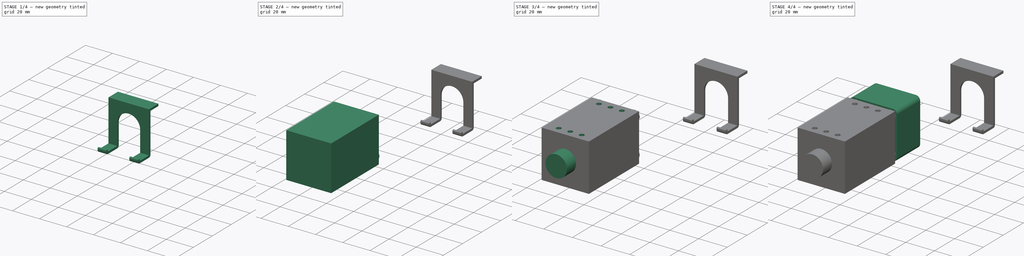
[diagram: build sequence overview — one tinted view per stage of 4, left to right]
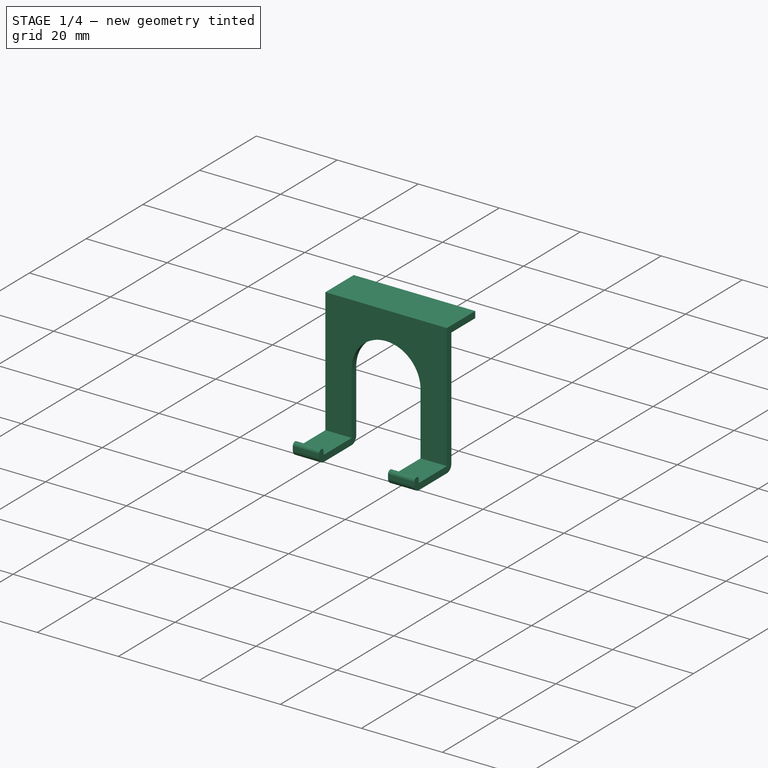
[diagram: stage 1 of 4 — iso view after this stage's code; geometry added in this stage tinted green]
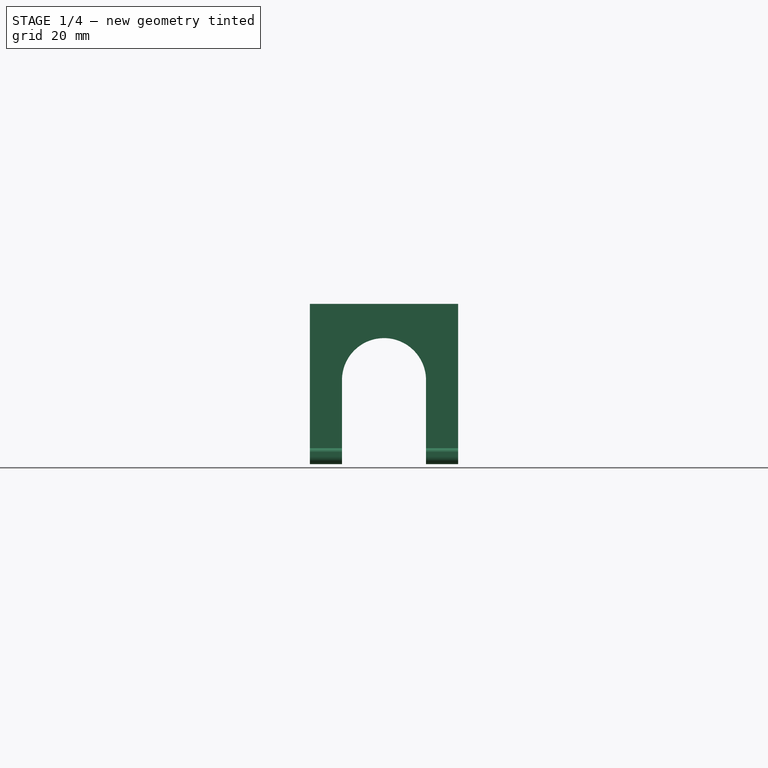
[diagram: stage 1 of 4 — front view after this stage's code; geometry added in this stage tinted green]
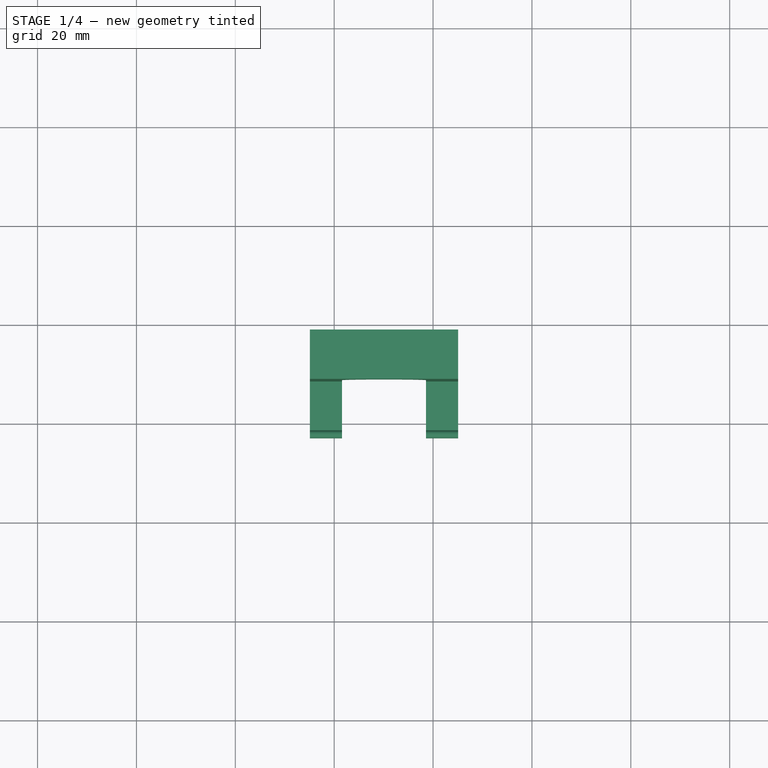
[diagram: stage 1 of 4 — top view after this stage's code; geometry added in this stage tinted green]
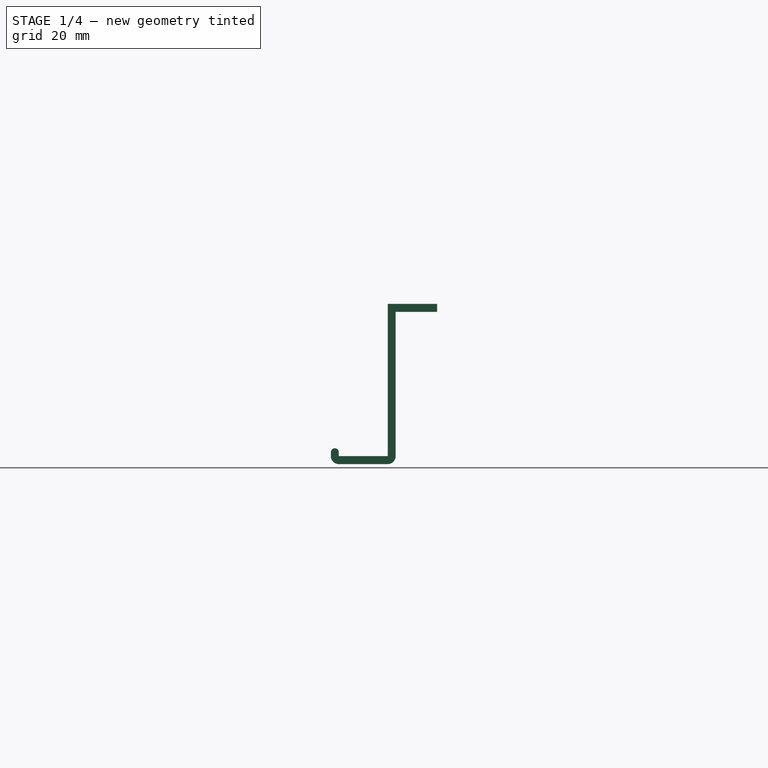
[diagram: stage 1 of 4 — right view after this stage's code; geometry added in this stage tinted green]
FCSTD DOCUMENT  (FreeCAD 0.19R24267 (Git))
Label: tete
License: All rights reserved
LicenseURL: http://en.wikipedia.org/wiki/All_rights_reserved
objects: Sketcher::SketchObject×8, PartDesign::Pad×5, Part::Feature×2, PartDesign::Plane×2, PartDesign::Body×2, App::FeaturePython×2, PartDesign::Point×1, PartDesign::ShapeBinder×1, PartDesign::PolarPattern×1, PartDesign::Hole×1, PartDesign::Fillet×1, App::DocumentObjectGroup×1, PartDesign::Pocket×1
note: 33 computed .brp shape members not serialized (recipe doc carries the construction recipe); baked Part::Feature solids carry a one-line shape summary decoded from their .brp

FEATURE [Part::Feature] Eazy_Mainbody_1_3001001_solid  label="Eazy_Mainbody_1_3002 (Solid)"
  shape: bbox 100.3 x 28.59 x 50 mm, 15862 faces (baked)
FEATURE [PartDesign::Point] DatumPoint
  AttacherType = Attacher::AttachEnginePoint
  MapMode = 37
  Placement = pos=(50.075,28.6,40) rot=(0,0,1;0rad)
  Support = -> [Eazy_Mainbody_1_3001001_solid]
FEATURE [PartDesign::Plane] DatumPlane
  AttachmentOffset = pos=(0,0,0) rot=(0,1,0;1.5708rad)
  Length = 78.2987
  MapMode = 1
  Placement = pos=(50.075,28.6,40) rot=(0,1,0;1.5708rad)
  ResizeMode = 0
  Support = -> [DatumPoint]
  Width = 76.4987
FEATURE [PartDesign::Plane] DatumPlane001
  Length = 105.425
  MapMode = 5
  Placement = pos=(0,28.6,0) rot=(0,0.707107,0.707107;3.14159rad)
  ResizeMode = 0
  Support = -> [Eazy_Mainbody_1_3001001_solid]
  Width = 80.7504
FEATURE [PartDesign::ShapeBinder] ShapeBinder
  Support = -> [Eazy_Mainbody_1_3001001_solid]
  TraceSupport = false
FEATURE [Sketcher::SketchObject] Sketch
  ExternalGeometry = -> [ShapeBinder]
  FullyConstrained = true
  MapMode = 5
  Placement = pos=(50.075,28.6,40) rot=(0,1,0;1.5708rad)
  Support = -> [DatumPlane]
  sketch-geometry (13):
    g0: LineSegment StartX=30.4 StartY=-9.9 StartZ=0 EndX=30.4 EndY=-3.6e-15 EndZ=0
    g1: LineSegment StartX=30.4 StartY=-3.6e-15 StartZ=0 EndX=-0.4 EndY=-3.6e-15 EndZ=0
    g2: LineSegment StartX=32 StartY=-9.9 StartZ=0 EndX=32 EndY=-3.6e-15 EndZ=0
    g3: LineSegment StartX=30.4 StartY=1.6 StartZ=0 EndX=1.2 EndY=1.6 EndZ=0
    g4: LineSegment StartX=30.4 StartY=-11.5 StartZ=0 EndX=29.6 EndY=-11.5 EndZ=0
    g5: LineSegment StartX=29.6 StartY=-9.9 StartZ=0 EndX=30.4 EndY=-9.9 EndZ=0
    g6: GeomPoint X=30 Y=-9.5 Z=0
    g7: ArcOfCircle CenterX=30.4 CenterY=-9.9 CenterZ=0 NormalX=0 NormalY=0 NormalZ=1 AngleXU=0 Radius=1.6 StartAngle=4.71239 EndAngle=6.28319
    g8: ArcOfCircle CenterX=30.4 CenterY=-3.6e-15 CenterZ=0 NormalX=0 NormalY=0 NormalZ=1 AngleXU=0 Radius=1.6 StartAngle=0 EndAngle=1.5708
    g9: ArcOfCircle CenterX=29.6 CenterY=-10.7 CenterZ=0 NormalX=0 NormalY=0 NormalZ=1 AngleXU=0 Radius=0.8 StartAngle=1.5708 EndAngle=4.71239
    g10: LineSegment StartX=-0.4 StartY=-3.6e-15 StartZ=0 EndX=-0.4 EndY=10 EndZ=0
    g11: LineSegment StartX=-0.4 StartY=10 StartZ=0 EndX=1.2 EndY=10 EndZ=0
    g12: LineSegment StartX=1.2 StartY=10 StartZ=0 EndX=1.2 EndY=1.6 EndZ=0
  constraints (33):
    c: Vertical(g0)
    c: PointOnObject(g0,g-4)
    c: Coincident(g1,g0)
    c: PointOnObject(g1,g-4)
    c: Vertical(g2)
    c: Horizontal(g3)
    c: Coincident(g5,g0)
    c: Horizontal(g5)
    c: Horizontal(g4)
    c: PointOnObject(g6,g-5)
    c: PointOnObject(g6,g-3)
    c: DistanceX(g6,g0) = 0.4
    c: DistanceY(g0,g6) = 0.4
    c: Tangent(g2,g7) = -1.5708
    c: Tangent(g4,g7) = 1.5708
    c: Tangent(g2,g8) = -1.5708
    c: Tangent(g3,g8) = -1.5708
    c: DistanceX(g1,g-1) = 0.4
    c: DistanceX(g0,g2) = 1.6
    c: Coincident(g8,g0)
    c: Coincident(g7,g0)
    c: Tangent(g9,g5) = 1.5708
    c: Tangent(g9,g4) = 1.5708
    c: DistanceX(g5,g6) = 0.4
    c: Vertical(g10)
    c: Coincident(g11,g10)
    c: Horizontal(g11)
    c: Coincident(g12,g11)
    c: Vertical(g12)
    c: Coincident(g3,g12)
    c: Coincident(g10,g1)
    c: DistanceX(g11,g11) = 1.6
    c: DistanceY(g10,g10) = 10
FEATURE [PartDesign::Pad] Pad
  AllowMultiFace = false
  Direction = (1,1,1)
  Length = 30
  Length2 = 100
  Midplane = true
  Placement = pos=(50.075,28.6,40) rot=(0,1,0;1.5708rad)
  Profile = -> Sketch
  Type = 0
FEATURE [PartDesign::Body] Body001  label="Laser"
  Group = -> [Sketch003,Pad004,Sketch004,Pad001,PolarPattern,Sketch002,Hole,Sketch005,Pad002,Sketch006,Pad003,Fillet]
  Origin = -> Origin001
  Placement = pos=(60,28,70) rot=(0,1,0;3.14159rad)
  Tip = -> Fillet
FEATURE [Part::Feature] Fan_BLFanDuct_V1_1001001_solid  label="Fan_BLFanDuct_V1_1001001 (Solid)"
  Placement = pos=(0,0,0) rot=(0,1,0;1.5708rad)
  shape: bbox 22 x 39.89 x 30 mm, 21730 faces (baked)
FEATURE [App::DocumentObjectGroup] Group  label="Origine"
  Group = -> [Eazy_Mainbody_1_3001001_solid,Fan_BLFanDuct_V1_1001001_solid]
FEATURE [PartDesign::Pocket] Pocket
  BaseFeature = -> Pad
  Length = 30
  Length2 = 100
  Midplane = true
  Placement = pos=(50.075,28.6,40) rot=(0,1,0;1.5708rad)
  Profile = -> Sketch001
  Type = 0
FEATURE [App::FeaturePython] planeCoincident_001  label="planeCoincident_001__Pocket"  # a2plus constraint (typed FeaturePython)
  Object1 = Fillet
  Object2 = Pocket
  ParentTreeObject = -> Fillet
  SubElement1 = Face16
  SubElement2 = Face7
  Suppressed = false
  Type = plane
  directionConstraint = 0
  offset = 0
FEATURE [App::FeaturePython] planeCoincident_001_mirror  label="planeCoincident_001__Fillet"  # a2plus constraint (typed FeaturePython)
  Object1 = Fillet
  Object2 = Pocket
  ParentTreeObject = -> Pocket
  SubElement1 = Face16
  SubElement2 = Face7
  Suppressed = false
  Type = plane
  directionConstraint = 0
  offset = 0
FEATURE [Sketcher::SketchObject] Sketch007
  FullyConstrained = false
  MapMode = 5
  Placement = pos=(50.075,28.6,38.8) rot=(0.707107,0.707107,0;3.14159rad)
  Support = -> [Pocket]
  sketch-geometry (1):
    g0: Circle CenterX=5.26053 CenterY=6.83856 CenterZ=0 NormalX=0 NormalY=0 NormalZ=1 AngleXU=0 Radius=1.5
  constraints (1):
    c: Diameter(g0) = 3
FEATURE [PartDesign::Body] Body  label="Support"
  Group = -> [DatumPoint,DatumPlane,DatumPlane001,ShapeBinder,Sketch,Pad,Sketch001,Pocket,Sketch007]
  Origin = -> Origin
  Tip = -> Pocket
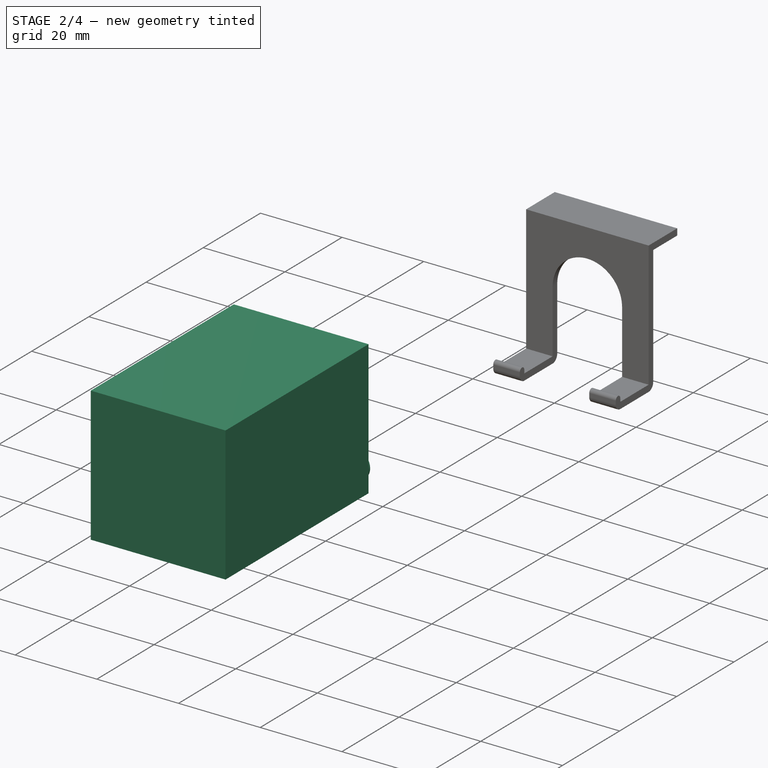
[diagram: stage 2 of 4 — iso view after this stage's code; geometry added in this stage tinted green]
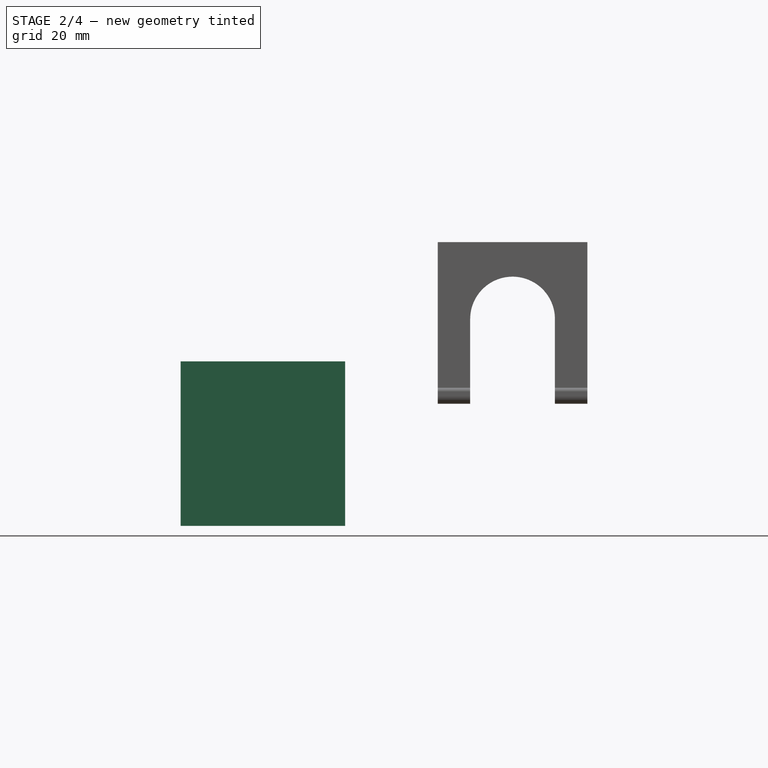
[diagram: stage 2 of 4 — front view after this stage's code; geometry added in this stage tinted green]
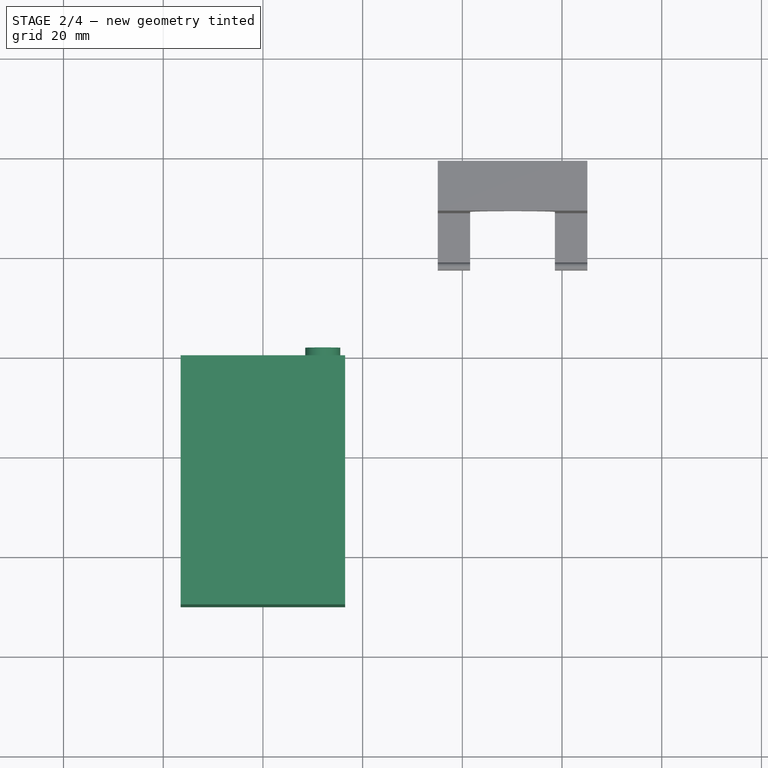
[diagram: stage 2 of 4 — top view after this stage's code; geometry added in this stage tinted green]
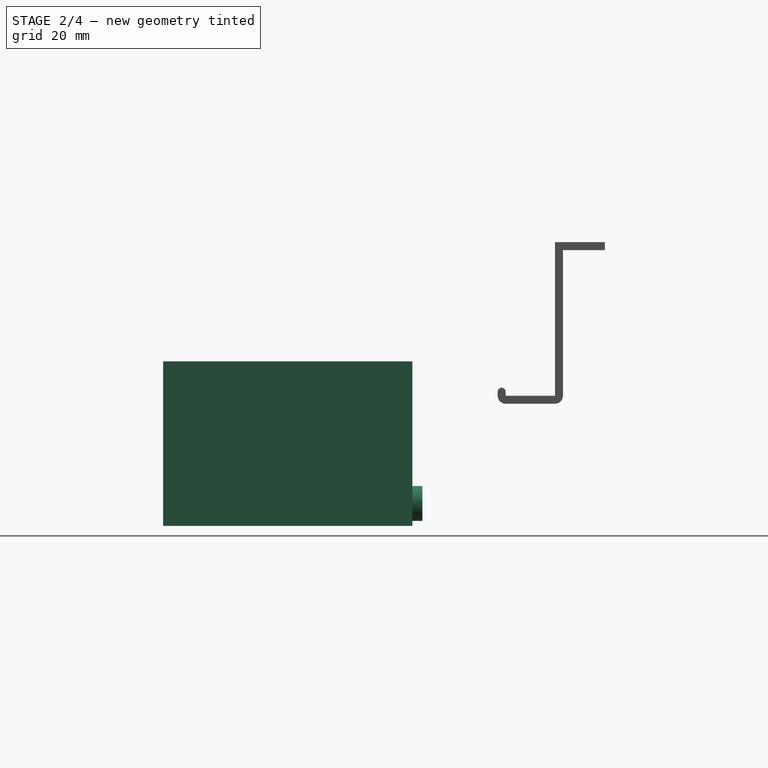
[diagram: stage 2 of 4 — right view after this stage's code; geometry added in this stage tinted green]
FEATURE [Sketcher::SketchObject] Sketch001
  ExternalGeometry = -> [DatumPoint,ShapeBinder]
  FullyConstrained = false
  MapMode = 5
  Placement = pos=(0,28.6,0) rot=(0,0.707107,0.707107;3.14159rad)
  Support = -> [DatumPlane001]
  sketch-geometry (7):
    g0: Circle CenterX=-50.075 CenterY=24.9822 CenterZ=0 NormalX=0 NormalY=0 NormalZ=1 AngleXU=0 Radius=8.5
    g1: ArcOfCircle CenterX=-50.075 CenterY=24.9822 CenterZ=0 NormalX=0 NormalY=0 NormalZ=1 AngleXU=0 Radius=8.5 StartAngle=8e-16 EndAngle=3.14159
    g2: LineSegment StartX=-58.575 StartY=24.9822 StartZ=0 EndX=-41.575 EndY=24.9822 EndZ=0
    g3: LineSegment StartX=-58.575 StartY=24.9822 StartZ=0 EndX=-58.575 EndY=5 EndZ=0
    g4: LineSegment StartX=-41.575 StartY=24.9822 StartZ=0 EndX=-41.575 EndY=5 EndZ=0
    g5: LineSegment StartX=-58.575 StartY=5 StartZ=0 EndX=-41.575 EndY=5 EndZ=0
    g6: LineSegment StartX=-50.075 StartY=40 StartZ=0 EndX=-50.075 EndY=-2.13286 EndZ=0
  constraints (18):
    c: Coincident(g1,g0)
    c: PointOnObject(g1,g0)
    c: Coincident(g2,g1)
    c: Coincident(g2,g1)
    c: Horizontal(g2)
    c: PointOnObject(g1,g2)
    c: Coincident(g3,g1)
    c: Vertical(g3)
    c: Coincident(g4,g1)
    c: Vertical(g4)
    c: Coincident(g5,g3)
    c: Coincident(g5,g4)
    c: Perpendicular(g5,g4)
    c: DistanceY(g3,g-4) = 5
    c: DistanceX(g2,g2) = 17
    c: Coincident(g6,g-3)
    c: Vertical(g6)
    c: PointOnObject(g1,g6)
FEATURE [Sketcher::SketchObject] Sketch003
  FullyConstrained = false
  MapMode = 5
  Placement = pos=(0,0,0) rot=(1,0,0;1.5708rad)
  Support = -> [XZ_Plane001]
  sketch-geometry (4):
    g0: LineSegment StartX=-16.5 StartY=16.5 StartZ=0 EndX=16.5 EndY=16.5 EndZ=0
    g1: LineSegment StartX=16.5 StartY=16.5 StartZ=0 EndX=16.5 EndY=-16.5 EndZ=0
    g2: LineSegment StartX=16.5 StartY=-16.5 StartZ=0 EndX=-16.5 EndY=-16.5 EndZ=0
    g3: LineSegment StartX=-16.5 StartY=-16.5 StartZ=0 EndX=-16.5 EndY=16.5 EndZ=0
  constraints (10):
    c: Coincident(g0,g1)
    c: Coincident(g1,g2)
    c: Coincident(g2,g3)
    c: Coincident(g3,g0)
    c: Horizontal(g2)
    c: Vertical(g3)
    c: Symmetric(g0,g1,g-1)
    c: DistanceX(g0,g0) = 33
    c: Symmetric(g2,g0,g-1)
    c: DistanceY(g3,g3) = 33
FEATURE [PartDesign::Pad] Pad004
  AllowMultiFace = false
  Direction = (1,1,1)
  Length = 50
  Length2 = 100
  Placement = pos=(0,0,0) rot=(1,0,0;1.5708rad)
  Profile = -> Sketch003
  Type = 0
FEATURE [Sketcher::SketchObject] Sketch004
  ExternalGeometry = -> [Pad004]
  FullyConstrained = false
  MapMode = 5
  Placement = pos=(0,0,0) rot=(-1,0,0;1.5708rad)
  Support = -> [Pad004]
  sketch-geometry (3):
    g0: Circle CenterX=12 CenterY=12 CenterZ=0 NormalX=0 NormalY=0 NormalZ=1 AngleXU=0 Radius=3.5
    g1: LineSegment StartX=9.36458 StartY=15.5 StartZ=0 EndX=15.5 EndY=15.5 EndZ=0
    g2: LineSegment StartX=15.5 StartY=15.5 StartZ=0 EndX=15.5 EndY=10.6883 EndZ=0
  constraints (8):
    c: Diameter(g0) = 7
    c: Horizontal(g1)
    c: Tangent(g1,g0)
    c: Vertical(g2)
    c: Tangent(g2,g0)
    c: DistanceX(g1,g-3) = 1
    c: Coincident(g1,g2)
    c: DistanceY(g1,g-3) = 1
FEATURE [PartDesign::Pad] Pad001
  AllowMultiFace = false
  BaseFeature = -> Pad004
  Direction = (1,1,1)
  Length = 2
  Length2 = 100
  Placement = pos=(0,0,0) rot=(1,0,0;1.5708rad)
  Profile = -> Sketch004
  Type = 0
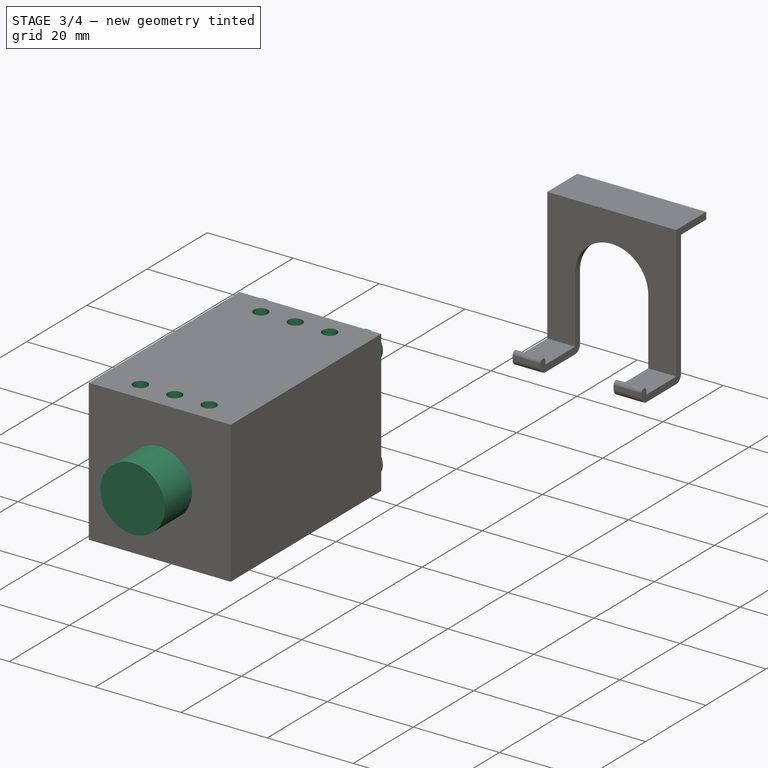
[diagram: stage 3 of 4 — iso view after this stage's code; geometry added in this stage tinted green]
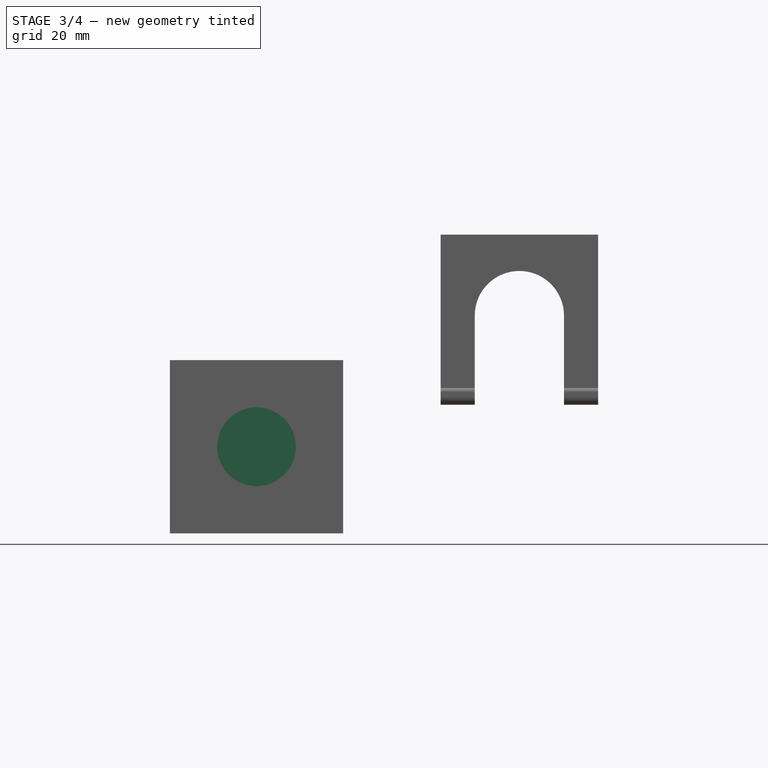
[diagram: stage 3 of 4 — front view after this stage's code; geometry added in this stage tinted green]
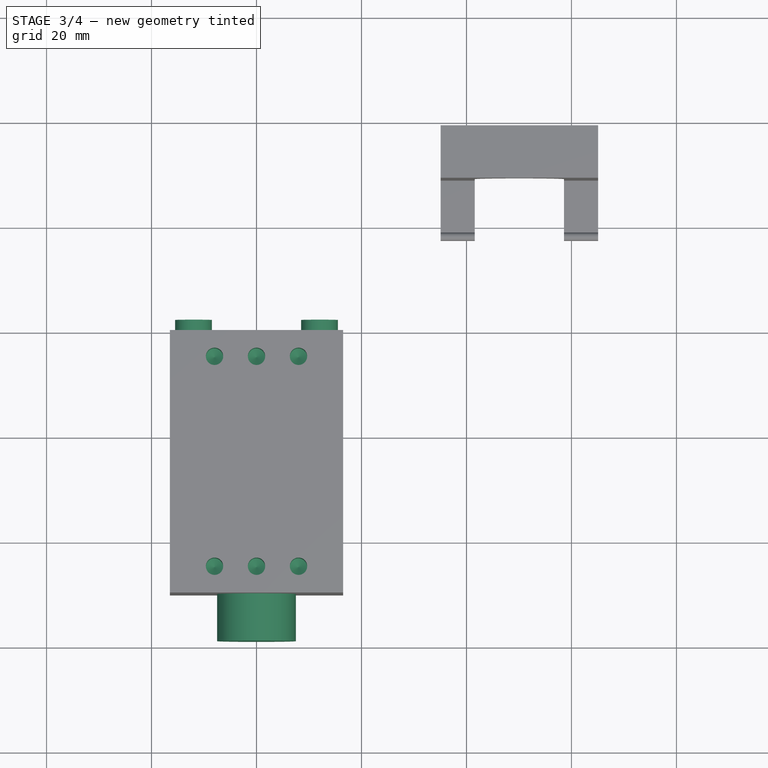
[diagram: stage 3 of 4 — top view after this stage's code; geometry added in this stage tinted green]
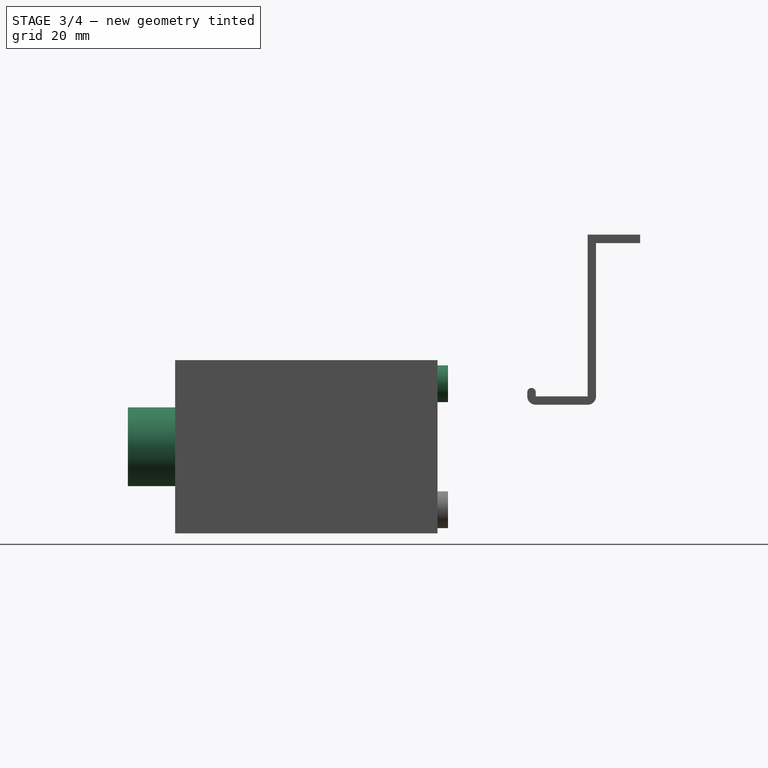
[diagram: stage 3 of 4 — right view after this stage's code; geometry added in this stage tinted green]
FEATURE [PartDesign::PolarPattern] PolarPattern
  Angle = 360
  Axis = -> Sketch004 [N_Axis]
  BaseFeature = -> Pad001
  Occurrences = 4
  Originals = -> [Pad001]
  Placement = pos=(0,0,0) rot=(1,0,0;1.5708rad)
FEATURE [Sketcher::SketchObject] Sketch002
  FullyConstrained = false
  MapMode = 5
  Placement = pos=(-7.3968e-12,1.09e-14,16.5) rot=(0,0,1;3.14159rad)
  Support = -> [PolarPattern]
  sketch-geometry (9):
    g0: Circle CenterX=8 CenterY=5 CenterZ=0 NormalX=0 NormalY=0 NormalZ=1 AngleXU=0 Radius=1.5
    g1: Circle CenterX=0 CenterY=5 CenterZ=0 NormalX=0 NormalY=0 NormalZ=1 AngleXU=0 Radius=1.5
    g2: Circle CenterX=-8 CenterY=5 CenterZ=0 NormalX=0 NormalY=0 NormalZ=1 AngleXU=0 Radius=1.5
    g3: LineSegment StartX=8 StartY=5 StartZ=0 EndX=-8 EndY=5 EndZ=0
    g4: LineSegment StartX=8 StartY=45 StartZ=0 EndX=-8 EndY=45 EndZ=0
    g5: GeomPoint X=0 Y=45 Z=0
    g6: Circle CenterX=-8 CenterY=45 CenterZ=0 NormalX=0 NormalY=0 NormalZ=1 AngleXU=0 Radius=1.5
    g7: Circle CenterX=0 CenterY=45 CenterZ=0 NormalX=0 NormalY=0 NormalZ=1 AngleXU=0 Radius=1.5
    g8: Circle CenterX=8 CenterY=45 CenterZ=0 NormalX=0 NormalY=0 NormalZ=1 AngleXU=0 Radius=1.5
  constraints (21):
    c: PointOnObject(g1,g-2)
    c: Diameter(g0) = 3
    c: Diameter(g1) = 3
    c: Diameter(g2) = 3
    c: PointOnObject(g1,g3)
    c: DistanceY(g-1,g1) = 5
    c: Coincident(g0,g3)
    c: Coincident(g2,g3)
    c: Symmetric(g0,g2,g-2)
    c: DistanceX(g3,g3) = 16
    c: Equal(g3,g4) = 16
    c: PointOnObject(g5,g4)
    c: PointOnObject(g5,g-2)
    c: Coincident(g6,g4)
    c: Coincident(g7,g5)
    c: Coincident(g8,g4)
    c: Diameter(g6) = 3
    c: Equal(g6,g7)
    c: Equal(g6,g8)
    c: Symmetric(g6,g8,g-2)
    c: DistanceY(g1,g5) = 40
FEATURE [PartDesign::Hole] Hole
  AllowMultiFace = false
  BaseFeature = -> PolarPattern
  Depth = 10
  DepthType = 0
  Diameter = 1.6
  DrillForDepth = false
  DrillPoint = 1
  DrillPointAngle = 118
  HoleCutCountersinkAngle = 90
  HoleCutCustomValues = false
  HoleCutDepth = 0
  HoleCutDiameter = 3
  HoleCutType = 0
  ModelActualThread = false
  Placement = pos=(0,0,0) rot=(1,0,0;1.5708rad)
  Profile = -> Sketch002
  Tapered = false
  TaperedAngle = 90
  ThreadAngle = 0
  ThreadClass = 0
  ThreadCutOffInner = 0
  ThreadCutOffOuter = 0
  ThreadDirection = 0
  ThreadFit = 0
  ThreadPitch = 0
  ThreadSize = 3
  ThreadType = 1
  Threaded = false
FEATURE [Sketcher::SketchObject] Sketch005
  FullyConstrained = false
  MapMode = 5
  Placement = pos=(0,-50,2.21e-14) rot=(1,0,0;1.5708rad)
  Support = -> [Hole]
  sketch-geometry (1):
    g0: Circle CenterX=0 CenterY=0 CenterZ=0 NormalX=0 NormalY=0 NormalZ=1 AngleXU=0 Radius=7.5
  constraints (2):
    c: Coincident(g0,g-1)
    c: Diameter(g0) = 15
FEATURE [PartDesign::Pad] Pad002
  AllowMultiFace = false
  BaseFeature = -> Hole
  Direction = (1,1,1)
  Length = 9
  Length2 = 100
  Placement = pos=(0,0,0) rot=(1,0,0;1.5708rad)
  Profile = -> Sketch005
  Type = 0
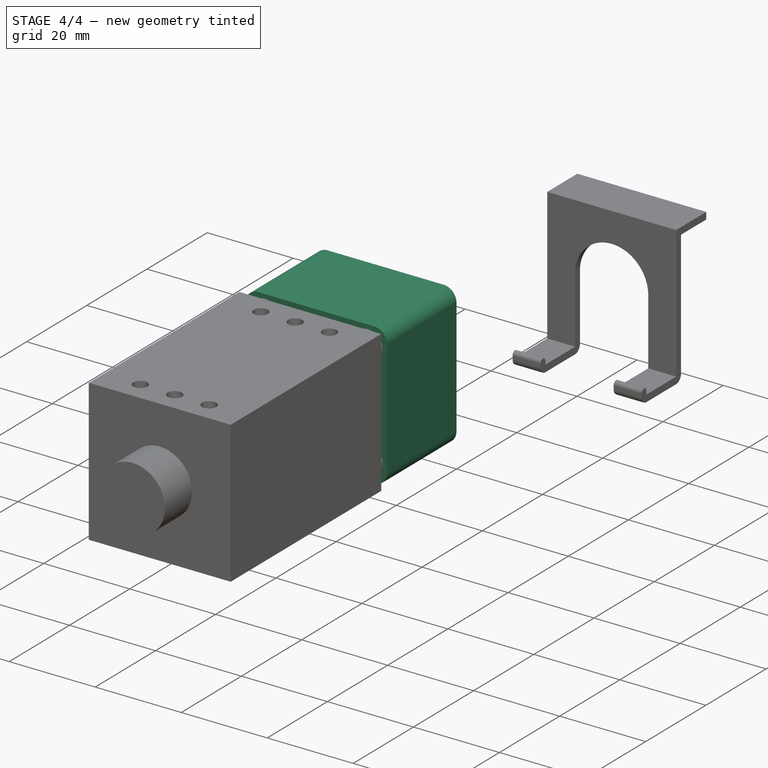
[diagram: stage 4 of 4 — iso view after this stage's code; geometry added in this stage tinted green]
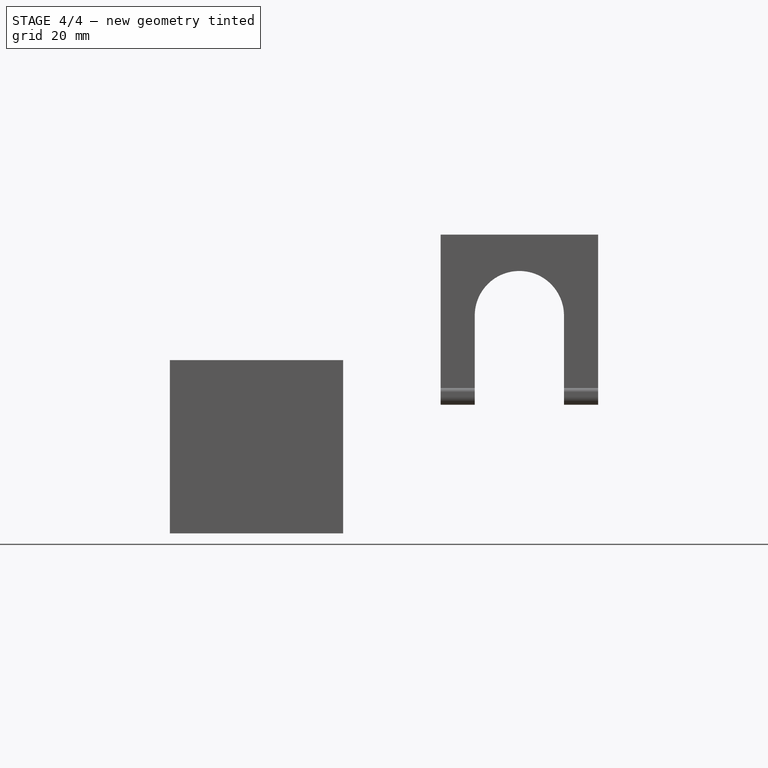
[diagram: stage 4 of 4 — front view after this stage's code; geometry added in this stage tinted green]
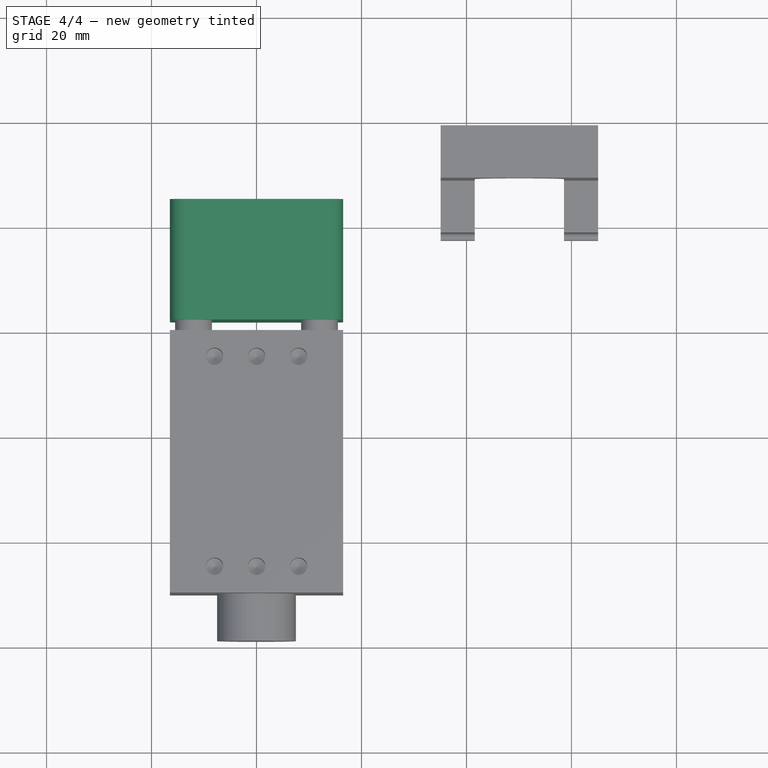
[diagram: stage 4 of 4 — top view after this stage's code; geometry added in this stage tinted green]
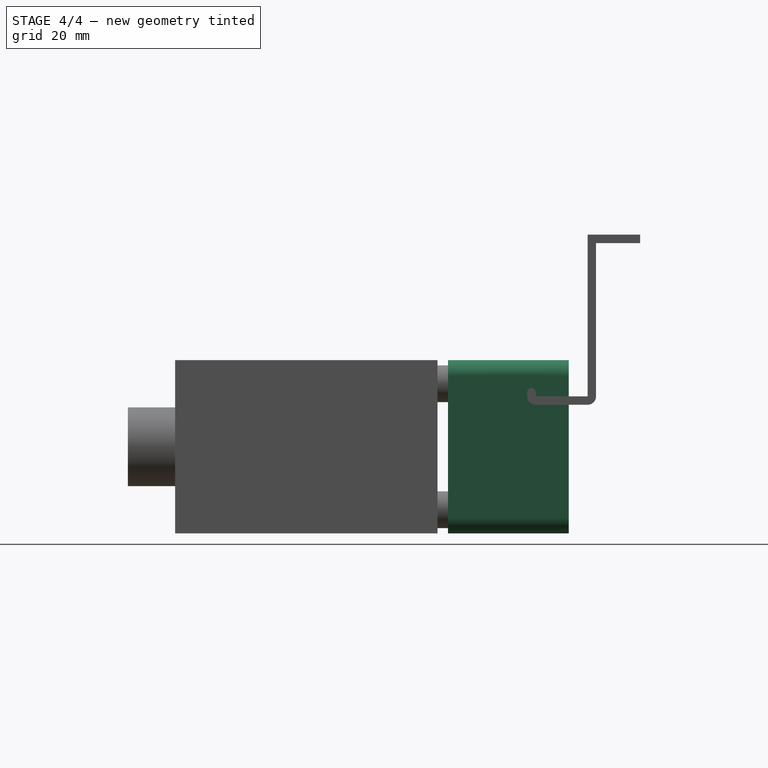
[diagram: stage 4 of 4 — right view after this stage's code; geometry added in this stage tinted green]
FEATURE [Sketcher::SketchObject] Sketch006
  ExternalGeometry = -> [Pad002]
  FullyConstrained = false
  MapMode = 5
  Placement = pos=(0,2,-1.8e-15) rot=(-1,0,0;1.5708rad)
  Support = -> [Pad002]
  sketch-geometry (4):
    g0: LineSegment StartX=-16.5 StartY=16.5 StartZ=0 EndX=16.5 EndY=16.5 EndZ=0
    g1: LineSegment StartX=16.5 StartY=16.5 StartZ=0 EndX=16.5 EndY=-16.5 EndZ=0
    g2: LineSegment StartX=16.5 StartY=-16.5 StartZ=0 EndX=-16.5 EndY=-16.5 EndZ=0
    g3: LineSegment StartX=-16.5 StartY=-16.5 StartZ=0 EndX=-16.5 EndY=16.5 EndZ=0
  constraints (10):
    c: Coincident(g0,g1)
    c: Coincident(g1,g2)
    c: Coincident(g2,g3)
    c: Coincident(g3,g0)
    c: Horizontal(g0)
    c: Horizontal(g2)
    c: Vertical(g1)
    c: Vertical(g3)
    c: Coincident(g0,g-4)
    c: Coincident(g1,g-6)
FEATURE [PartDesign::Pad] Pad003
  AllowMultiFace = false
  BaseFeature = -> Pad002
  Direction = (1,1,1)
  Length = 23
  Length2 = 100
  Placement = pos=(0,0,0) rot=(1,0,0;1.5708rad)
  Profile = -> Sketch006
  Type = 0
FEATURE [PartDesign::Fillet] Fillet
  Base = -> Pad003 [Edge2,Edge1,Edge5,Edge8]
  BaseFeature = -> Pad003
  Placement = pos=(0,0,0) rot=(1,0,0;1.5708rad)
  Radius = 3
  SupportTransform = false
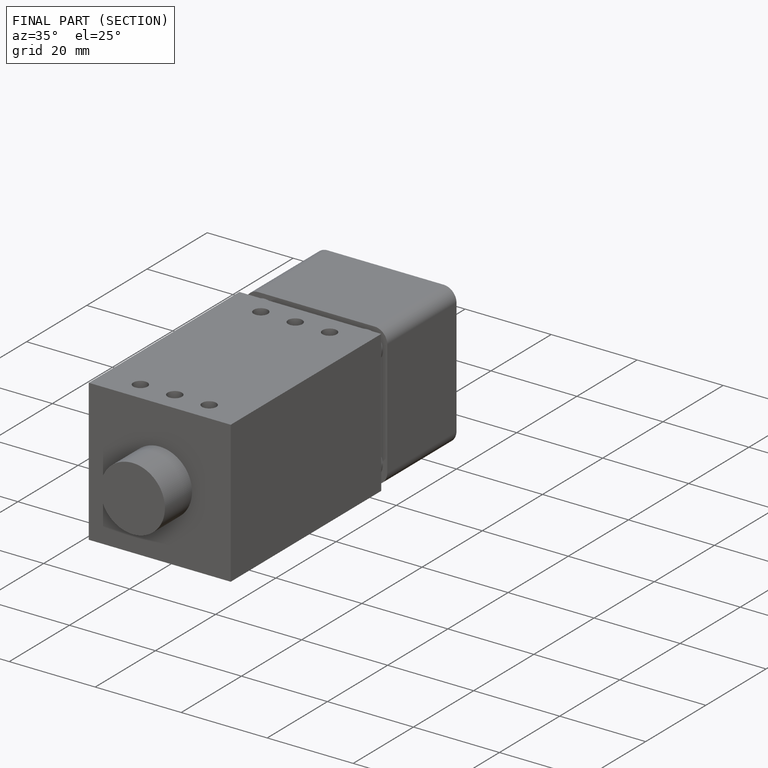
[diagram: finished part — half-section view (interior)]
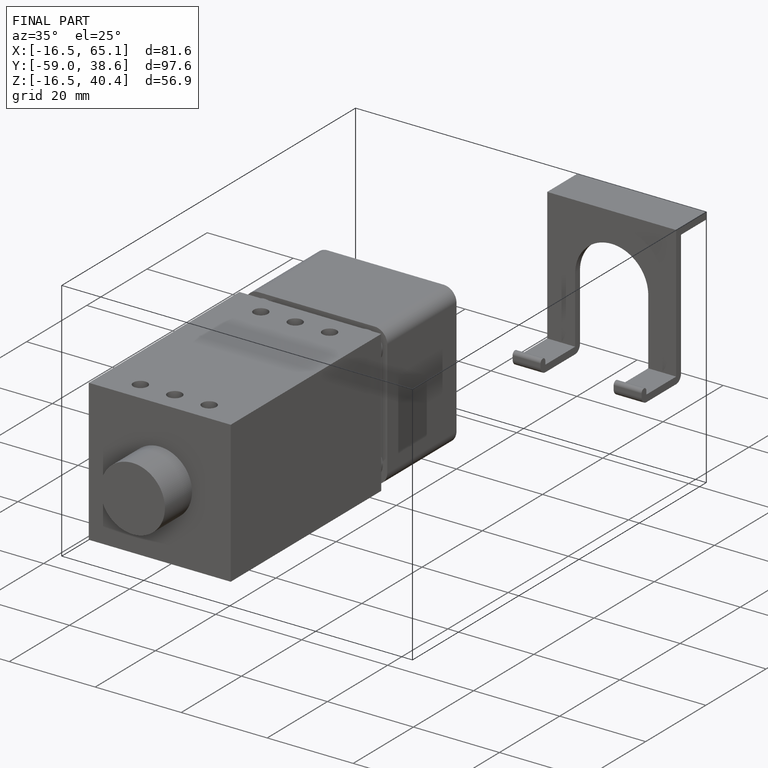
[diagram: finished part — iso view with bounding-box wireframe]
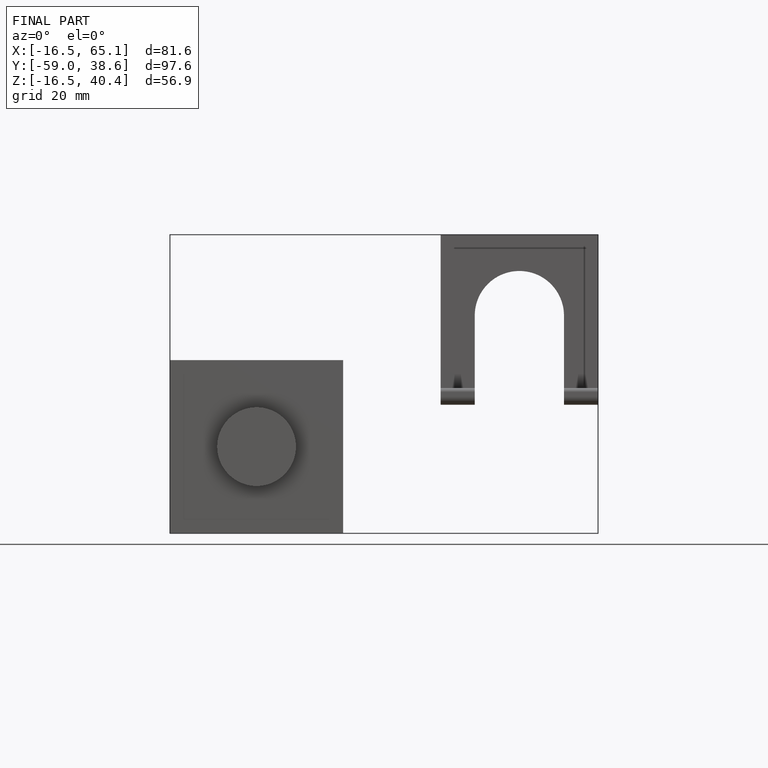
[diagram: finished part — front view with bounding-box wireframe]
